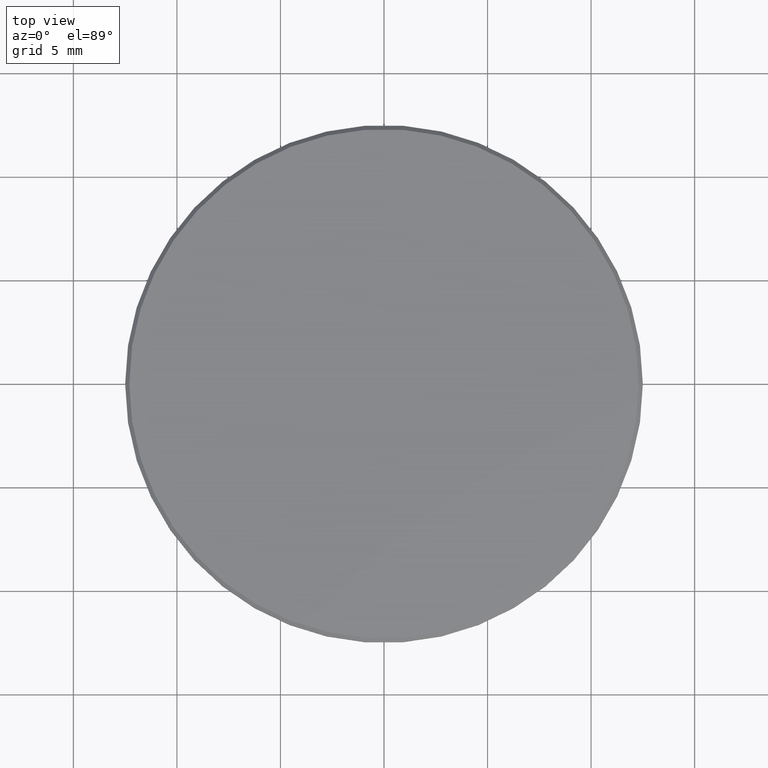
[diagram: clean part render]
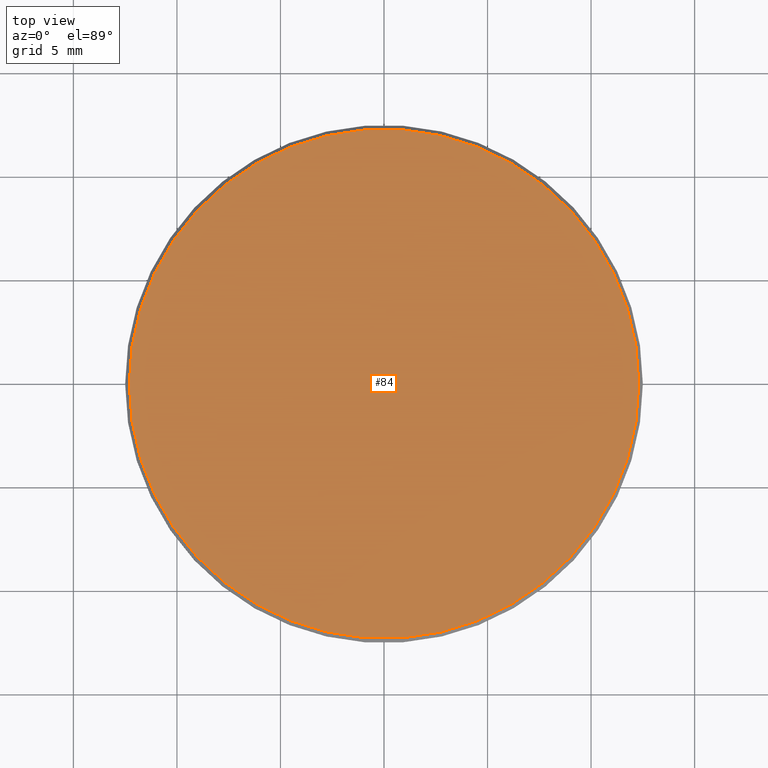
[diagram: same view with one face highlighted and labeled with its STEP entity id]
A machine part, top view. The second image highlights one B-rep face of the part: STEP entity #84.
In plain terms, the highlighted planar face has unit normal (0, 0, 1).
Its self-contained STEP definition (entity closure, byte-faithful):
#2 = AXIS2_PLACEMENT_3D ( 'NONE', #86, #232, #123 ) ;
#9 = PLANE ( 'NONE',  #2 ) ;
#11 = CIRCLE ( 'NONE', #41, 12.29999999999999893 ) ;
#29 = CARTESIAN_POINT ( 'NONE',  ( 12.29999999999999893, 1.518562030942717967E-15, 1.000000000000000000 ) ) ;
#36 = AXIS2_PLACEMENT_3D ( 'NONE', #129, #92, #111 ) ;
#41 = AXIS2_PLACEMENT_3D ( 'NONE', #52, #191, #70 ) ;
#44 = CIRCLE ( 'NONE', #36, 12.29999999999999893 ) ;
#49 = VERTEX_POINT ( 'NONE', #29 ) ;
#52 = CARTESIAN_POINT ( 'NONE',  ( 0.000000000000000000, 0.000000000000000000, 1.000000000000000000 ) ) ;
#70 = DIRECTION ( 'NONE',  ( 1.000000000000000000, 0.000000000000000000, 0.000000000000000000 ) ) ;
#84 = ADVANCED_FACE ( 'NONE', ( #140 ), #9, .T. ) ;
#86 = CARTESIAN_POINT ( 'NONE',  ( 0.000000000000000000, 0.000000000000000000, 1.000000000000000000 ) ) ;
#92 = DIRECTION ( 'NONE',  ( 0.000000000000000000, 0.000000000000000000, 1.000000000000000000 ) ) ;
#93 = EDGE_CURVE ( 'NONE', #99, #49, #11, .T. ) ;
#99 = VERTEX_POINT ( 'NONE', #124 ) ;
#102 = EDGE_LOOP ( 'NONE', ( #158, #171 ) ) ;
#111 = DIRECTION ( 'NONE',  ( 1.000000000000000000, 0.000000000000000000, 0.000000000000000000 ) ) ;
#123 = DIRECTION ( 'NONE',  ( 1.000000000000000000, 0.000000000000000000, -0.000000000000000000 ) ) ;
#124 = CARTESIAN_POINT ( 'NONE',  ( -12.29999999999999893, 0.000000000000000000, 1.000000000000000000 ) ) ;
#129 = CARTESIAN_POINT ( 'NONE',  ( 0.000000000000000000, 0.000000000000000000, 1.000000000000000000 ) ) ;
#140 = FACE_OUTER_BOUND ( 'NONE', #102, .T. ) ;
#158 = ORIENTED_EDGE ( 'NONE', *, *, #93, .T. ) ;
#164 = EDGE_CURVE ( 'NONE', #49, #99, #44, .T. ) ;
#171 = ORIENTED_EDGE ( 'NONE', *, *, #164, .T. ) ;
#191 = DIRECTION ( 'NONE',  ( 0.000000000000000000, 0.000000000000000000, 1.000000000000000000 ) ) ;
#232 = DIRECTION ( 'NONE',  ( 0.000000000000000000, 0.000000000000000000, 1.000000000000000000 ) ) ;